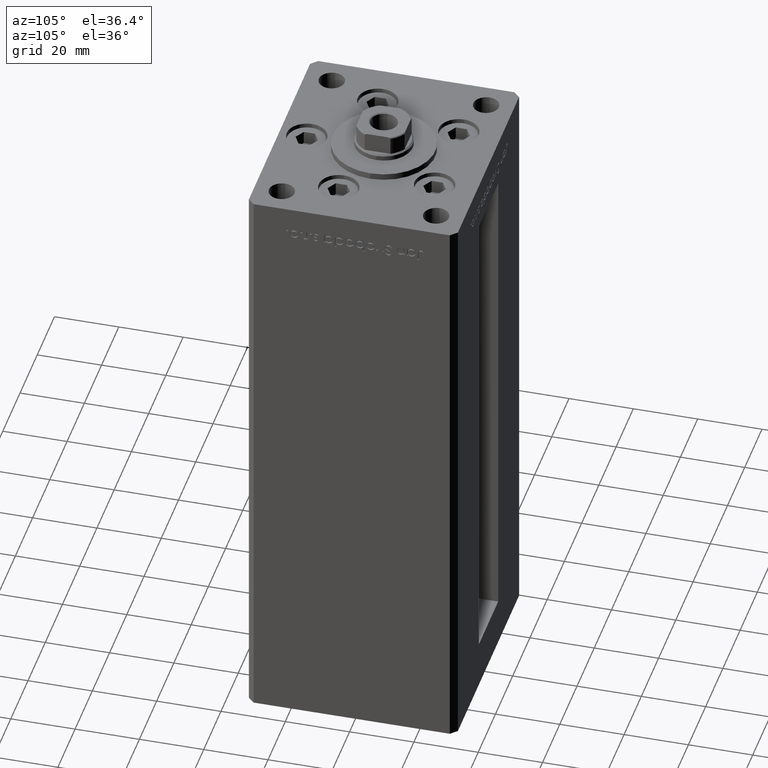
[diagram: clean part render]
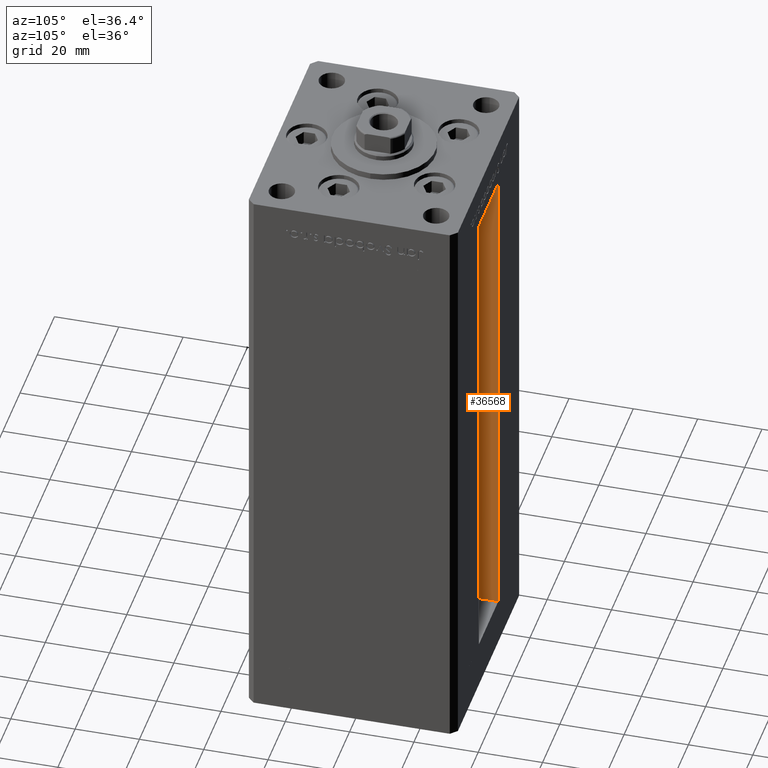
[diagram: same view with one face highlighted and labeled with its STEP entity id]
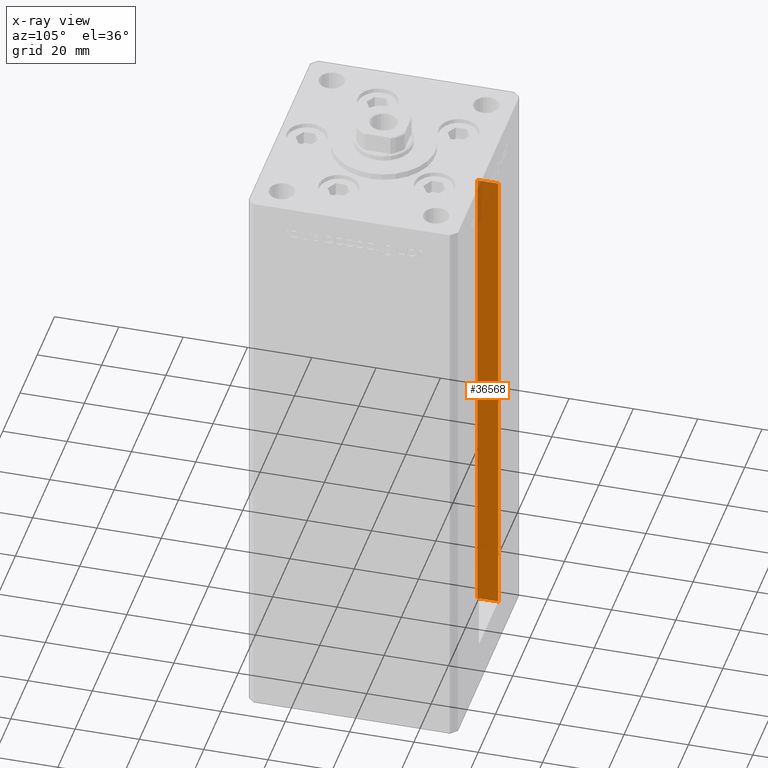
[diagram: x-ray of the same camera — body ghosted, the highlighted face saturated]
A machine part, auxiliary view. The second image highlights one B-rep face of the part: STEP entity #36568.
The next image is the same camera in x-ray: the body ghosted, the highlighted face saturated — about 8% of this face is hidden behind the body in this view.
In plain terms, the highlighted planar face has unit normal (-1, 0, 0).
Its self-contained STEP definition (entity closure, byte-faithful):
#455 = DIRECTION ( 'NONE',  ( -0.000000000000000000, -0.000000000000000000, 1.000000000000000000 ) ) ;
#2453 = PLANE ( 'NONE',  #14168 ) ;
#3190 = CARTESIAN_POINT ( 'NONE',  ( -11.25000000000000178, 25.99999999999999289, 156.0000000000000000 ) ) ;
#4394 = VECTOR ( 'NONE', #455, 1000.000000000000000 ) ;
#5656 = VERTEX_POINT ( 'NONE', #5967 ) ;
#5951 = LINE ( 'NONE', #25755, #42863 ) ;
#5967 = CARTESIAN_POINT ( 'NONE',  ( -11.25000000000000178, 32.49999999999999289, 0.000000000000000000 ) ) ;
#8640 = EDGE_CURVE ( 'NONE', #5656, #52185, #49518, .T. ) ;
#8819 = VERTEX_POINT ( 'NONE', #36816 ) ;
#9967 = EDGE_LOOP ( 'NONE', ( #43786, #11964, #38726, #26321 ) ) ;
#11964 = ORIENTED_EDGE ( 'NONE', *, *, #8640, .F. ) ;
#14168 = AXIS2_PLACEMENT_3D ( 'NONE', #30696, #26727, #20626 ) ;
#14321 = CARTESIAN_POINT ( 'NONE',  ( -11.25000000000000178, 25.99999999999999289, 0.000000000000000000 ) ) ;
#15056 = VECTOR ( 'NONE', #29479, 1000.000000000000000 ) ;
#15781 = CARTESIAN_POINT ( 'NONE',  ( -11.25000000000000178, 25.99999999999999289, 0.000000000000000000 ) ) ;
#16140 = EDGE_CURVE ( 'NONE', #52185, #31728, #18281, .T. ) ;
#16558 = LINE ( 'NONE', #23959, #4394 ) ;
#17318 = DIRECTION ( 'NONE',  ( 0.000000000000000000, 1.000000000000000000, 0.000000000000000000 ) ) ;
#18281 = LINE ( 'NONE', #14321, #20333 ) ;
#20333 = VECTOR ( 'NONE', #49408, 1000.000000000000000 ) ;
#20626 = DIRECTION ( 'NONE',  ( 0.000000000000000000, 0.000000000000000000, 1.000000000000000000 ) ) ;
#23959 = CARTESIAN_POINT ( 'NONE',  ( -11.25000000000000178, 32.49999999999999289, 0.000000000000000000 ) ) ;
#25755 = CARTESIAN_POINT ( 'NONE',  ( -11.25000000000000178, 0.000000000000000000, 156.0000000000000000 ) ) ;
#26321 = ORIENTED_EDGE ( 'NONE', *, *, #39674, .F. ) ;
#26727 = DIRECTION ( 'NONE',  ( -1.000000000000000000, 0.000000000000000000, 0.000000000000000000 ) ) ;
#29479 = DIRECTION ( 'NONE',  ( -0.000000000000000000, -1.000000000000000000, -0.000000000000000000 ) ) ;
#30696 = CARTESIAN_POINT ( 'NONE',  ( -11.25000000000000178, 25.99999999999999289, 0.000000000000000000 ) ) ;
#31728 = VERTEX_POINT ( 'NONE', #3190 ) ;
#36568 = ADVANCED_FACE ( 'NONE', ( #38621 ), #2453, .F. ) ;
#36816 = CARTESIAN_POINT ( 'NONE',  ( -11.25000000000000178, 32.49999999999999289, 156.0000000000000000 ) ) ;
#37931 = CARTESIAN_POINT ( 'NONE',  ( -11.25000000000000178, 25.99999999999999289, 0.000000000000000000 ) ) ;
#38621 = FACE_OUTER_BOUND ( 'NONE', #9967, .T. ) ;
#38726 = ORIENTED_EDGE ( 'NONE', *, *, #49019, .T. ) ;
#39674 = EDGE_CURVE ( 'NONE', #31728, #8819, #5951, .T. ) ;
#42863 = VECTOR ( 'NONE', #17318, 1000.000000000000000 ) ;
#43786 = ORIENTED_EDGE ( 'NONE', *, *, #16140, .F. ) ;
#49019 = EDGE_CURVE ( 'NONE', #5656, #8819, #16558, .T. ) ;
#49408 = DIRECTION ( 'NONE',  ( -0.000000000000000000, -0.000000000000000000, 1.000000000000000000 ) ) ;
#49518 = LINE ( 'NONE', #37931, #15056 ) ;
#52185 = VERTEX_POINT ( 'NONE', #15781 ) ;